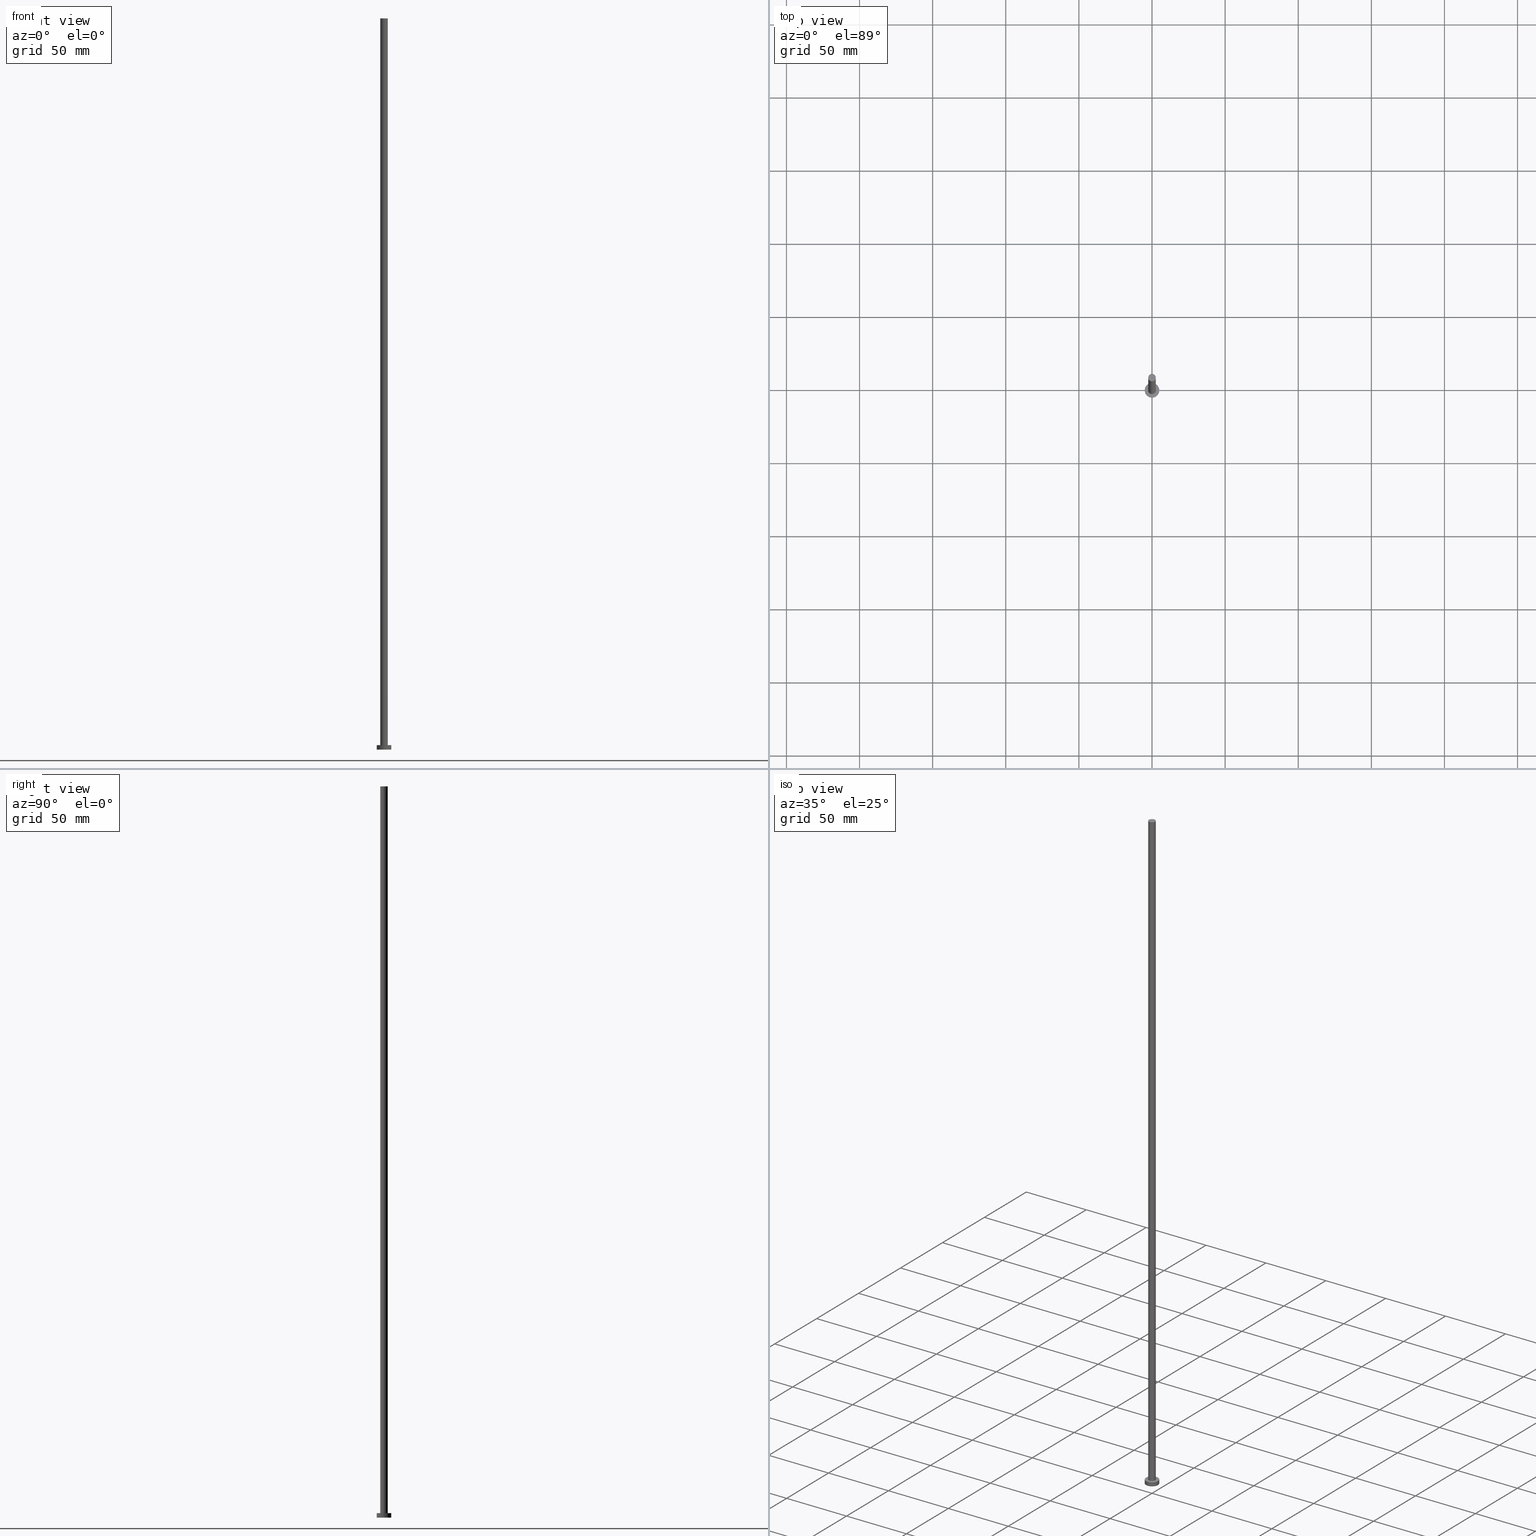
[diagram: canonical four-view strip — front | top / right | iso, engineering-drawing reading convention]
A machine part, canonical four-view strip (front | top / right | iso — engineering-drawing reading convention). The complete STEP part file that produces these views, byte-faithful:
ISO-10303-21;
HEADER;
FILE_DESCRIPTION (( 'STEP AP203' ),
    '1' );
FILE_NAME ('8000.STEP',
    '2023-02-12T11:43:01',
    ( '' ),
    ( '' ),
    'SwSTEP 2.0',
    'SolidWorks 2019',
    '' );
FILE_SCHEMA (( 'CONFIG_CONTROL_DESIGN' ));
ENDSEC;

DATA;
#1 = DIRECTION ( 'NONE',  ( 0.000000000000000000, 0.000000000000000000, 1.000000000000000000 ) ) ;
#2 = AXIS2_PLACEMENT_3D ( 'NONE', #8, #70, #236 ) ;
#3 = DIRECTION ( 'NONE',  ( 1.000000000000000000, 0.000000000000000000, 0.000000000000000000 ) ) ;
#4 = CYLINDRICAL_SURFACE ( 'NONE', #145, 2.600000000000000089 ) ;
#5 = PERSON_AND_ORGANIZATION ( #105, #129 ) ;
#6 = ADVANCED_FACE ( 'NONE', ( #91 ), #230, .T. ) ;
#7 = APPLICATION_PROTOCOL_DEFINITION ( 'international standard', 'config_control_design', 1994, #16 ) ;
#8 = CARTESIAN_POINT ( 'NONE',  ( 0.000000000000000000, 0.000000000000000000, 3.000000000000000000 ) ) ;
#9 = APPROVAL_ROLE ( '' ) ;
#10 = ORIENTED_EDGE ( 'NONE', *, *, #149, .F. ) ;
#11 = CIRCLE ( 'NONE', #206, 5.000000000000000000 ) ;
#12 = LOCAL_TIME ( 12, 43, 1.000000000000000000, #131 ) ;
#13 = PRODUCT_DEFINITION ( 'NEZN�M�', '', #241, #52 ) ;
#14 = DATE_AND_TIME ( #244, #38 ) ;
#15 = ORIENTED_EDGE ( 'NONE', *, *, #211, .T. ) ;
#16 = APPLICATION_CONTEXT ( 'configuration controlled 3d designs of mechanical parts and assemblies' ) ;
#17 = VERTEX_POINT ( 'NONE', #245 ) ;
#18 = APPROVAL ( #36, 'NEUR�EN�' ) ;
#19 = AXIS2_PLACEMENT_3D ( 'NONE', #175, #81, #141 ) ;
#20 = CC_DESIGN_SECURITY_CLASSIFICATION ( #69, ( #241 ) ) ;
#21 = PLANE ( 'NONE',  #158 ) ;
#22 = LOCAL_TIME ( 12, 43, 1.000000000000000000, #130 ) ;
#23 = CARTESIAN_POINT ( 'NONE',  ( 2.600000000000000089, 3.184081677783117698E-16, 500.0000000000000000 ) ) ;
#24 = CARTESIAN_POINT ( 'NONE',  ( 0.000000000000000000, 0.000000000000000000, 3.000000000000000000 ) ) ;
#25 = DIRECTION ( 'NONE',  ( 0.000000000000000000, 0.000000000000000000, 1.000000000000000000 ) ) ;
#26 = CARTESIAN_POINT ( 'NONE',  ( 0.000000000000000000, 0.000000000000000000, 0.000000000000000000 ) ) ;
#27 = FACE_OUTER_BOUND ( 'NONE', #225, .T. ) ;
#28 = ADVANCED_FACE ( 'NONE', ( #137, #209 ), #21, .T. ) ;
#29 = APPROVAL_STATUS ( 'not_yet_approved' ) ;
#30 = ORIENTED_EDGE ( 'NONE', *, *, #173, .T. ) ;
#31 = DATE_AND_TIME ( #202, #22 ) ;
#32 = MECHANICAL_CONTEXT ( 'NONE', #144, 'mechanical' ) ;
#33 = PERSON_AND_ORGANIZATION_ROLE ( 'classification_officer' ) ;
#34 = VERTEX_POINT ( 'NONE', #132 ) ;
#35 = PRODUCT_RELATED_PRODUCT_CATEGORY ( 'detail', '', ( #220 ) ) ;
#36 = APPROVAL_STATUS ( 'not_yet_approved' ) ;
#37 = DIRECTION ( 'NONE',  ( 0.000000000000000000, 0.000000000000000000, 1.000000000000000000 ) ) ;
#38 = LOCAL_TIME ( 12, 43, 1.000000000000000000, #148 ) ;
#39 = AXIS2_PLACEMENT_3D ( 'NONE', #152, #193, #59 ) ;
#40 =( GEOMETRIC_REPRESENTATION_CONTEXT ( 3 ) GLOBAL_UNCERTAINTY_ASSIGNED_CONTEXT ( ( #227 ) ) GLOBAL_UNIT_ASSIGNED_CONTEXT ( ( #233, #201, #66 ) ) REPRESENTATION_CONTEXT ( 'NONE', 'WORKASPACE' ) );
#41 = ORIENTED_EDGE ( 'NONE', *, *, #73, .F. ) ;
#42 = CARTESIAN_POINT ( 'NONE',  ( 0.000000000000000000, 0.000000000000000000, 0.000000000000000000 ) ) ;
#43 = DIRECTION ( 'NONE',  ( 1.000000000000000000, 0.000000000000000000, 0.000000000000000000 ) ) ;
#44 = FACE_OUTER_BOUND ( 'NONE', #53, .T. ) ;
#45 = DIRECTION ( 'NONE',  ( -0.000000000000000000, -0.000000000000000000, -1.000000000000000000 ) ) ;
#46 = CARTESIAN_POINT ( 'NONE',  ( -2.600000000000000089, 0.000000000000000000, 500.0000000000000000 ) ) ;
#47 = COORDINATED_UNIVERSAL_TIME_OFFSET ( 1, 0, .AHEAD. ) ;
#48 = PERSON_AND_ORGANIZATION ( #105, #129 ) ;
#49 = DIRECTION ( 'NONE',  ( 1.000000000000000000, 0.000000000000000000, 0.000000000000000000 ) ) ;
#50 = VECTOR ( 'NONE', #63, 1000.000000000000000 ) ;
#51 = APPLICATION_PROTOCOL_DEFINITION ( 'international standard', 'config_control_design', 1994, #144 ) ;
#52 = DESIGN_CONTEXT ( 'detailed design', #16, 'design' ) ;
#53 = EDGE_LOOP ( 'NONE', ( #247, #57, #89, #250 ) ) ;
#54 = PERSON_AND_ORGANIZATION ( #105, #129 ) ;
#55 = VERTEX_POINT ( 'NONE', #190 ) ;
#56 = AXIS2_PLACEMENT_3D ( 'NONE', #180, #254, #79 ) ;
#57 = ORIENTED_EDGE ( 'NONE', *, *, #162, .T. ) ;
#58 = AXIS2_PLACEMENT_3D ( 'NONE', #97, #212, #43 ) ;
#59 = DIRECTION ( 'NONE',  ( 1.000000000000000000, 0.000000000000000000, -0.000000000000000000 ) ) ;
#60 = ORIENTED_EDGE ( 'NONE', *, *, #118, .F. ) ;
#61 = DIRECTION ( 'NONE',  ( 1.000000000000000000, 0.000000000000000000, 0.000000000000000000 ) ) ;
#62 = PRODUCT_DEFINITION_SHAPE ( 'NONE', 'NONE',  #13 ) ;
#63 = DIRECTION ( 'NONE',  ( -0.000000000000000000, -0.000000000000000000, -1.000000000000000000 ) ) ;
#64 = DIRECTION ( 'NONE',  ( 1.000000000000000000, 0.000000000000000000, -0.000000000000000000 ) ) ;
#65 = DIRECTION ( 'NONE',  ( -0.000000000000000000, -0.000000000000000000, -1.000000000000000000 ) ) ;
#66 =( NAMED_UNIT ( * ) SI_UNIT ( $, .STERADIAN. ) SOLID_ANGLE_UNIT ( ) );
#67 = APPROVAL_DATE_TIME ( #14, #177 ) ;
#68 = AXIS2_PLACEMENT_3D ( 'NONE', #174, #252, #186 ) ;
#69 = SECURITY_CLASSIFICATION ( '', '', #204 ) ;
#70 = DIRECTION ( 'NONE',  ( 0.000000000000000000, 0.000000000000000000, 1.000000000000000000 ) ) ;
#71 = EDGE_LOOP ( 'NONE', ( #108, #147 ) ) ;
#72 = APPROVAL_DATE_TIME ( #248, #18 ) ;
#73 = EDGE_CURVE ( 'NONE', #55, #93, #219, .T. ) ;
#74 = APPROVAL_PERSON_ORGANIZATION ( #128, #177, #165 ) ;
#75 = EDGE_CURVE ( 'NONE', #154, #17, #116, .T. ) ;
#76 = ORIENTED_EDGE ( 'NONE', *, *, #162, .F. ) ;
#77 = CC_DESIGN_APPROVAL ( #177, ( #241 ) ) ;
#78 = EDGE_LOOP ( 'NONE', ( #109, #41, #210, #30 ) ) ;
#79 = DIRECTION ( 'NONE',  ( -1.000000000000000000, 0.000000000000000000, 0.000000000000000000 ) ) ;
#80 = ADVANCED_FACE ( 'NONE', ( #215 ), #4, .T. ) ;
#81 = DIRECTION ( 'NONE',  ( -0.000000000000000000, -0.000000000000000000, -1.000000000000000000 ) ) ;
#82 = FACE_OUTER_BOUND ( 'NONE', #94, .T. ) ;
#83 = LINE ( 'NONE', #160, #87 ) ;
#84 = DIRECTION ( 'NONE',  ( -1.000000000000000000, 0.000000000000000000, 0.000000000000000000 ) ) ;
#85 = MANIFOLD_SOLID_BREP ( 'P�idat vysunut�m3', #179 ) ;
#86 = ADVANCED_FACE ( 'NONE', ( #82 ), #213, .F. ) ;
#87 = VECTOR ( 'NONE', #156, 1000.000000000000000 ) ;
#88 = APPROVAL_STATUS ( 'not_yet_approved' ) ;
#89 = ORIENTED_EDGE ( 'NONE', *, *, #183, .T. ) ;
#90 = DATE_AND_TIME ( #243, #12 ) ;
#91 = FACE_OUTER_BOUND ( 'NONE', #172, .T. ) ;
#92 = APPROVAL_ROLE ( '' ) ;
#93 = VERTEX_POINT ( 'NONE', #23 ) ;
#94 = EDGE_LOOP ( 'NONE', ( #60, #113 ) ) ;
#95 = AXIS2_PLACEMENT_3D ( 'NONE', #24, #197, #102 ) ;
#96 = DIRECTION ( 'NONE',  ( 1.000000000000000000, 0.000000000000000000, -0.000000000000000000 ) ) ;
#97 = CARTESIAN_POINT ( 'NONE',  ( 0.000000000000000000, 0.000000000000000000, 3.000000000000000000 ) ) ;
#98 = CARTESIAN_POINT ( 'NONE',  ( 0.000000000000000000, 0.000000000000000000, 0.000000000000000000 ) ) ;
#99 = DIRECTION ( 'NONE',  ( 1.000000000000000000, 0.000000000000000000, 0.000000000000000000 ) ) ;
#100 = CIRCLE ( 'NONE', #229, 5.000000000000000000 ) ;
#101 = CC_DESIGN_APPROVAL ( #18, ( #69 ) ) ;
#102 = DIRECTION ( 'NONE',  ( 1.000000000000000000, 0.000000000000000000, 0.000000000000000000 ) ) ;
#103 = ADVANCED_FACE ( 'NONE', ( #44 ), #178, .T. ) ;
#104 = DIRECTION ( 'NONE',  ( 0.000000000000000000, 0.000000000000000000, 1.000000000000000000 ) ) ;
#105 = PERSON ( 'NEUR�EN�', 'NEUR�EN�', 'NEUR�EN�', ('NEUR�EN�'), ('NEUR�EN�'), ('NEUR�EN�') ) ;
#106 = APPROVAL_DATE_TIME ( #31, #155 ) ;
#107 = CARTESIAN_POINT ( 'NONE',  ( 0.000000000000000000, 0.000000000000000000, 0.000000000000000000 ) ) ;
#108 = ORIENTED_EDGE ( 'NONE', *, *, #75, .T. ) ;
#109 = ORIENTED_EDGE ( 'NONE', *, *, #238, .F. ) ;
#110 = PERSON_AND_ORGANIZATION ( #105, #129 ) ;
#111 = AXIS2_PLACEMENT_3D ( 'NONE', #98, #200, #176 ) ;
#112 = LOCAL_TIME ( 12, 43, 1.000000000000000000, #47 ) ;
#113 = ORIENTED_EDGE ( 'NONE', *, *, #183, .F. ) ;
#114 = EDGE_CURVE ( 'NONE', #17, #154, #100, .T. ) ;
#115 = VERTEX_POINT ( 'NONE', #181 ) ;
#116 = CIRCLE ( 'NONE', #2, 5.000000000000000000 ) ;
#117 = ORIENTED_EDGE ( 'NONE', *, *, #208, .F. ) ;
#118 = EDGE_CURVE ( 'NONE', #224, #115, #11, .T. ) ;
#119 = DIRECTION ( 'NONE',  ( -1.000000000000000000, 0.000000000000000000, 0.000000000000000000 ) ) ;
#120 = LINE ( 'NONE', #214, #135 ) ;
#121 = CARTESIAN_POINT ( 'NONE',  ( 0.000000000000000000, 0.000000000000000000, 3.000000000000000000 ) ) ;
#122 = CARTESIAN_POINT ( 'NONE',  ( -5.000000000000000000, 0.000000000000000000, 3.000000000000000000 ) ) ;
#123 = EDGE_CURVE ( 'NONE', #93, #55, #242, .T. ) ;
#124 = LINE ( 'NONE', #46, #240 ) ;
#125 = PERSON_AND_ORGANIZATION ( #105, #129 ) ;
#126 = CC_DESIGN_PERSON_AND_ORGANIZATION_ASSIGNMENT ( #125, #33, ( #69 ) ) ;
#127 = CIRCLE ( 'NONE', #111, 5.000000000000000000 ) ;
#128 = PERSON_AND_ORGANIZATION ( #105, #129 ) ;
#129 = ORGANIZATION ( 'NEUR�EN�', 'NEUR�EN�', '' ) ;
#130 = COORDINATED_UNIVERSAL_TIME_OFFSET ( 1, 0, .AHEAD. ) ;
#131 = COORDINATED_UNIVERSAL_TIME_OFFSET ( 1, 0, .AHEAD. ) ;
#132 = CARTESIAN_POINT ( 'NONE',  ( 2.600000000000000089, 3.184081677783117698E-16, 3.000000000000000000 ) ) ;
#133 = AXIS2_PLACEMENT_3D ( 'NONE', #107, #187, #49 ) ;
#134 = AXIS2_PLACEMENT_3D ( 'NONE', #139, #1, #99 ) ;
#135 = VECTOR ( 'NONE', #65, 1000.000000000000000 ) ;
#136 = AXIS2_PLACEMENT_3D ( 'NONE', #121, #161, #119 ) ;
#137 = FACE_BOUND ( 'NONE', #192, .T. ) ;
#138 = EDGE_LOOP ( 'NONE', ( #76, #231, #15, #170 ) ) ;
#139 = CARTESIAN_POINT ( 'NONE',  ( 0.000000000000000000, 0.000000000000000000, 500.0000000000000000 ) ) ;
#140 = DIRECTION ( 'NONE',  ( -0.000000000000000000, -0.000000000000000000, -1.000000000000000000 ) ) ;
#141 = DIRECTION ( 'NONE',  ( -1.000000000000000000, 0.000000000000000000, 0.000000000000000000 ) ) ;
#142 = FACE_OUTER_BOUND ( 'NONE', #138, .T. ) ;
#143 = CC_DESIGN_DATE_AND_TIME_ASSIGNMENT ( #246, #182, ( #69 ) ) ;
#144 = APPLICATION_CONTEXT ( 'configuration controlled 3d designs of mechanical parts and assemblies' ) ;
#145 = AXIS2_PLACEMENT_3D ( 'NONE', #195, #140, #84 ) ;
#146 = PERSON_AND_ORGANIZATION_ROLE ( 'creator' ) ;
#147 = ORIENTED_EDGE ( 'NONE', *, *, #114, .T. ) ;
#148 = COORDINATED_UNIVERSAL_TIME_OFFSET ( 1, 0, .AHEAD. ) ;
#149 = EDGE_CURVE ( 'NONE', #34, #207, #163, .T. ) ;
#150 = ORIENTED_EDGE ( 'NONE', *, *, #149, .T. ) ;
#151 = ORIENTED_EDGE ( 'NONE', *, *, #73, .T. ) ;
#152 = CARTESIAN_POINT ( 'NONE',  ( 0.000000000000000000, 0.000000000000000000, 500.0000000000000000 ) ) ;
#153 = APPROVAL_PERSON_ORGANIZATION ( #5, #18, #92 ) ;
#154 = VERTEX_POINT ( 'NONE', #239 ) ;
#155 = APPROVAL ( #29, 'NEUR�EN�' ) ;
#156 = DIRECTION ( 'NONE',  ( -0.000000000000000000, -0.000000000000000000, -1.000000000000000000 ) ) ;
#157 = LINE ( 'NONE', #122, #50 ) ;
#158 = AXIS2_PLACEMENT_3D ( 'NONE', #168, #37, #96 ) ;
#159 = CYLINDRICAL_SURFACE ( 'NONE', #19, 5.000000000000000000 ) ;
#160 = CARTESIAN_POINT ( 'NONE',  ( 2.600000000000000089, 3.184081677783117698E-16, 500.0000000000000000 ) ) ;
#161 = DIRECTION ( 'NONE',  ( -0.000000000000000000, -0.000000000000000000, -1.000000000000000000 ) ) ;
#162 = EDGE_CURVE ( 'NONE', #17, #115, #120, .T. ) ;
#163 = CIRCLE ( 'NONE', #58, 2.600000000000000089 ) ;
#164 = PERSON_AND_ORGANIZATION_ROLE ( 'creator' ) ;
#165 = APPROVAL_ROLE ( '' ) ;
#166 = ORIENTED_EDGE ( 'NONE', *, *, #173, .F. ) ;
#167 = COORDINATED_UNIVERSAL_TIME_OFFSET ( 1, 0, .AHEAD. ) ;
#168 = CARTESIAN_POINT ( 'NONE',  ( 0.000000000000000000, 0.000000000000000000, 3.000000000000000000 ) ) ;
#169 = CALENDAR_DATE ( 2023, 12, 2 ) ;
#170 = ORIENTED_EDGE ( 'NONE', *, *, #118, .T. ) ;
#171 = CC_DESIGN_PERSON_AND_ORGANIZATION_ASSIGNMENT ( #184, #164, ( #13 ) ) ;
#172 = EDGE_LOOP ( 'NONE', ( #151, #188 ) ) ;
#173 = EDGE_CURVE ( 'NONE', #207, #34, #216, .T. ) ;
#174 = CARTESIAN_POINT ( 'NONE',  ( 0.000000000000000000, 0.000000000000000000, 500.0000000000000000 ) ) ;
#175 = CARTESIAN_POINT ( 'NONE',  ( 0.000000000000000000, 0.000000000000000000, 3.000000000000000000 ) ) ;
#176 = DIRECTION ( 'NONE',  ( 1.000000000000000000, 0.000000000000000000, 0.000000000000000000 ) ) ;
#177 = APPROVAL ( #88, 'NEUR�EN�' ) ;
#178 = CYLINDRICAL_SURFACE ( 'NONE', #136, 5.000000000000000000 ) ;
#179 = CLOSED_SHELL ( 'NONE', ( #228, #103, #205, #28, #86, #80, #6 ) ) ;
#180 = CARTESIAN_POINT ( 'NONE',  ( 0.000000000000000000, 0.000000000000000000, 500.0000000000000000 ) ) ;
#181 = CARTESIAN_POINT ( 'NONE',  ( 5.000000000000000000, 6.123233995736766282E-16, 0.000000000000000000 ) ) ;
#182 = DATE_TIME_ROLE ( 'classification_date' ) ;
#183 = EDGE_CURVE ( 'NONE', #115, #224, #127, .T. ) ;
#184 = PERSON_AND_ORGANIZATION ( #105, #129 ) ;
#185 = PERSON_AND_ORGANIZATION_ROLE ( 'design_owner' ) ;
#186 = DIRECTION ( 'NONE',  ( 1.000000000000000000, 0.000000000000000000, 0.000000000000000000 ) ) ;
#187 = DIRECTION ( 'NONE',  ( 0.000000000000000000, 0.000000000000000000, 1.000000000000000000 ) ) ;
#188 = ORIENTED_EDGE ( 'NONE', *, *, #123, .T. ) ;
#189 = LOCAL_TIME ( 12, 43, 1.000000000000000000, #167 ) ;
#190 = CARTESIAN_POINT ( 'NONE',  ( -2.600000000000000089, 0.000000000000000000, 500.0000000000000000 ) ) ;
#191 = CC_DESIGN_PERSON_AND_ORGANIZATION_ASSIGNMENT ( #54, #146, ( #241 ) ) ;
#192 = EDGE_LOOP ( 'NONE', ( #166, #10 ) ) ;
#193 = DIRECTION ( 'NONE',  ( 0.000000000000000000, 0.000000000000000000, 1.000000000000000000 ) ) ;
#194 = CARTESIAN_POINT ( 'NONE',  ( -5.000000000000000000, 0.000000000000000000, 0.000000000000000000 ) ) ;
#195 = CARTESIAN_POINT ( 'NONE',  ( 0.000000000000000000, 0.000000000000000000, 500.0000000000000000 ) ) ;
#196 = CC_DESIGN_PERSON_AND_ORGANIZATION_ASSIGNMENT ( #110, #203, ( #241 ) ) ;
#197 = DIRECTION ( 'NONE',  ( 0.000000000000000000, 0.000000000000000000, 1.000000000000000000 ) ) ;
#198 = CYLINDRICAL_SURFACE ( 'NONE', #56, 2.600000000000000089 ) ;
#199 = APPROVAL_PERSON_ORGANIZATION ( #48, #155, #9 ) ;
#200 = DIRECTION ( 'NONE',  ( 0.000000000000000000, 0.000000000000000000, 1.000000000000000000 ) ) ;
#201 =( NAMED_UNIT ( * ) PLANE_ANGLE_UNIT ( ) SI_UNIT ( $, .RADIAN. ) );
#202 = CALENDAR_DATE ( 2023, 12, 2 ) ;
#203 = PERSON_AND_ORGANIZATION_ROLE ( 'design_supplier' ) ;
#204 = SECURITY_CLASSIFICATION_LEVEL ( 'unclassified' ) ;
#205 = ADVANCED_FACE ( 'NONE', ( #142 ), #159, .T. ) ;
#206 = AXIS2_PLACEMENT_3D ( 'NONE', #42, #104, #3 ) ;
#207 = VERTEX_POINT ( 'NONE', #234 ) ;
#208 = EDGE_CURVE ( 'NONE', #55, #207, #124, .T. ) ;
#209 = FACE_OUTER_BOUND ( 'NONE', #71, .T. ) ;
#210 = ORIENTED_EDGE ( 'NONE', *, *, #208, .T. ) ;
#211 = EDGE_CURVE ( 'NONE', #154, #224, #157, .T. ) ;
#212 = DIRECTION ( 'NONE',  ( 0.000000000000000000, 0.000000000000000000, 1.000000000000000000 ) ) ;
#213 = PLANE ( 'NONE',  #235 ) ;
#214 = CARTESIAN_POINT ( 'NONE',  ( 5.000000000000000000, 6.123233995736766282E-16, 3.000000000000000000 ) ) ;
#215 = FACE_OUTER_BOUND ( 'NONE', #78, .T. ) ;
#216 = CIRCLE ( 'NONE', #95, 2.600000000000000089 ) ;
#217 = SHAPE_DEFINITION_REPRESENTATION ( #62, #226 ) ;
#218 = DATE_TIME_ROLE ( 'creation_date' ) ;
#219 = CIRCLE ( 'NONE', #68, 2.600000000000000089 ) ;
#220 = PRODUCT ( '8000', '8000', '', ( #32 ) ) ;
#221 = PERSON_AND_ORGANIZATION ( #105, #129 ) ;
#222 = ORIENTED_EDGE ( 'NONE', *, *, #123, .F. ) ;
#223 = CALENDAR_DATE ( 2023, 12, 2 ) ;
#224 = VERTEX_POINT ( 'NONE', #194 ) ;
#225 = EDGE_LOOP ( 'NONE', ( #222, #249, #150, #117 ) ) ;
#226 = ADVANCED_BREP_SHAPE_REPRESENTATION ( '8000', ( #85, #133 ), #40 ) ;
#227 = UNCERTAINTY_MEASURE_WITH_UNIT (LENGTH_MEASURE( 1.000000000000000082E-05 ), #233, 'distance_accuracy_value', 'NONE');
#228 = ADVANCED_FACE ( 'NONE', ( #27 ), #198, .T. ) ;
#229 = AXIS2_PLACEMENT_3D ( 'NONE', #237, #255, #61 ) ;
#230 = PLANE ( 'NONE',  #39 ) ;
#231 = ORIENTED_EDGE ( 'NONE', *, *, #75, .F. ) ;
#232 = CC_DESIGN_PERSON_AND_ORGANIZATION_ASSIGNMENT ( #221, #185, ( #220 ) ) ;
#233 =( LENGTH_UNIT ( ) NAMED_UNIT ( * ) SI_UNIT ( .MILLI., .METRE. ) );
#234 = CARTESIAN_POINT ( 'NONE',  ( -2.600000000000000089, 0.000000000000000000, 3.000000000000000000 ) ) ;
#235 = AXIS2_PLACEMENT_3D ( 'NONE', #26, #25, #64 ) ;
#236 = DIRECTION ( 'NONE',  ( 1.000000000000000000, 0.000000000000000000, 0.000000000000000000 ) ) ;
#237 = CARTESIAN_POINT ( 'NONE',  ( 0.000000000000000000, 0.000000000000000000, 3.000000000000000000 ) ) ;
#238 = EDGE_CURVE ( 'NONE', #93, #34, #83, .T. ) ;
#239 = CARTESIAN_POINT ( 'NONE',  ( -5.000000000000000000, 0.000000000000000000, 3.000000000000000000 ) ) ;
#240 = VECTOR ( 'NONE', #45, 1000.000000000000000 ) ;
#241 = PRODUCT_DEFINITION_FORMATION_WITH_SPECIFIED_SOURCE ( 'LIBOVOLN�', '', #220, .NOT_KNOWN. ) ;
#242 = CIRCLE ( 'NONE', #134, 2.600000000000000089 ) ;
#243 = CALENDAR_DATE ( 2023, 12, 2 ) ;
#244 = CALENDAR_DATE ( 2023, 12, 2 ) ;
#245 = CARTESIAN_POINT ( 'NONE',  ( 5.000000000000000000, 6.123233995736766282E-16, 3.000000000000000000 ) ) ;
#246 = DATE_AND_TIME ( #223, #189 ) ;
#247 = ORIENTED_EDGE ( 'NONE', *, *, #114, .F. ) ;
#248 = DATE_AND_TIME ( #169, #112 ) ;
#249 = ORIENTED_EDGE ( 'NONE', *, *, #238, .T. ) ;
#250 = ORIENTED_EDGE ( 'NONE', *, *, #211, .F. ) ;
#251 = CC_DESIGN_APPROVAL ( #155, ( #13 ) ) ;
#252 = DIRECTION ( 'NONE',  ( 0.000000000000000000, 0.000000000000000000, 1.000000000000000000 ) ) ;
#253 = CC_DESIGN_DATE_AND_TIME_ASSIGNMENT ( #90, #218, ( #13 ) ) ;
#254 = DIRECTION ( 'NONE',  ( -0.000000000000000000, -0.000000000000000000, -1.000000000000000000 ) ) ;
#255 = DIRECTION ( 'NONE',  ( 0.000000000000000000, 0.000000000000000000, 1.000000000000000000 ) ) ;
ENDSEC;
END-ISO-10303-21;
